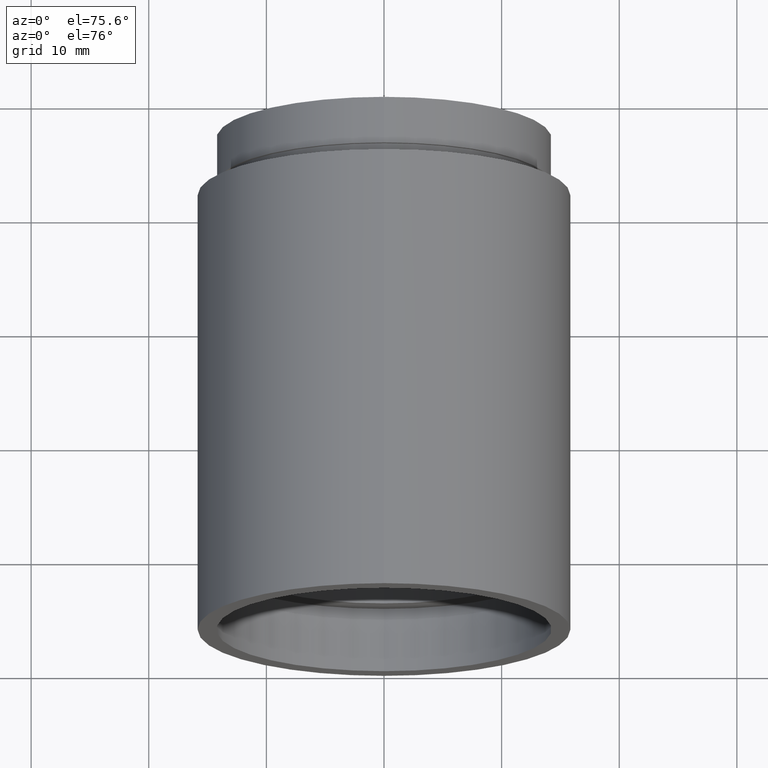
[diagram: clean part render]
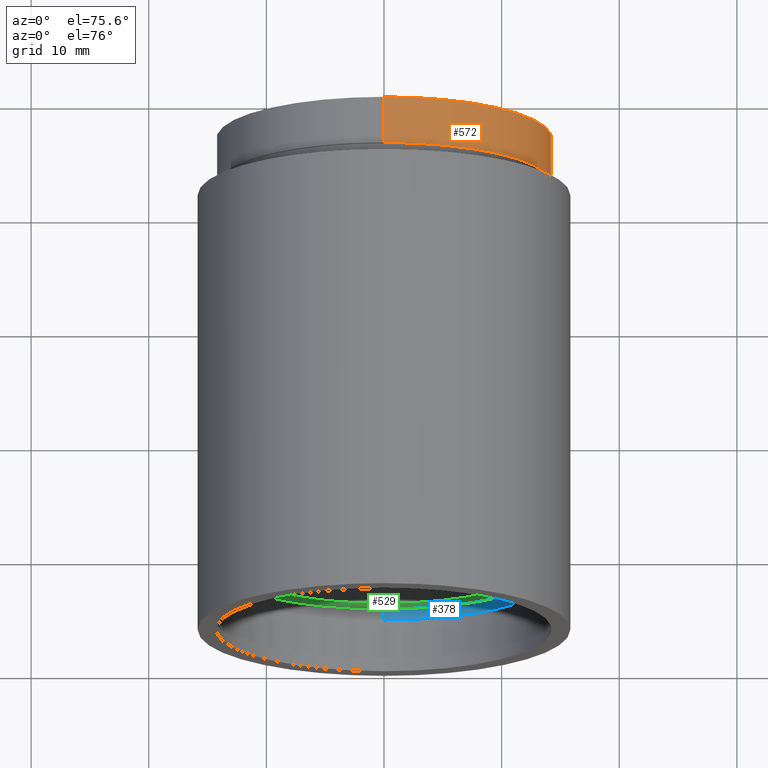
[diagram: same view with three faces highlighted in distinct colors, each labeled with its STEP entity id]
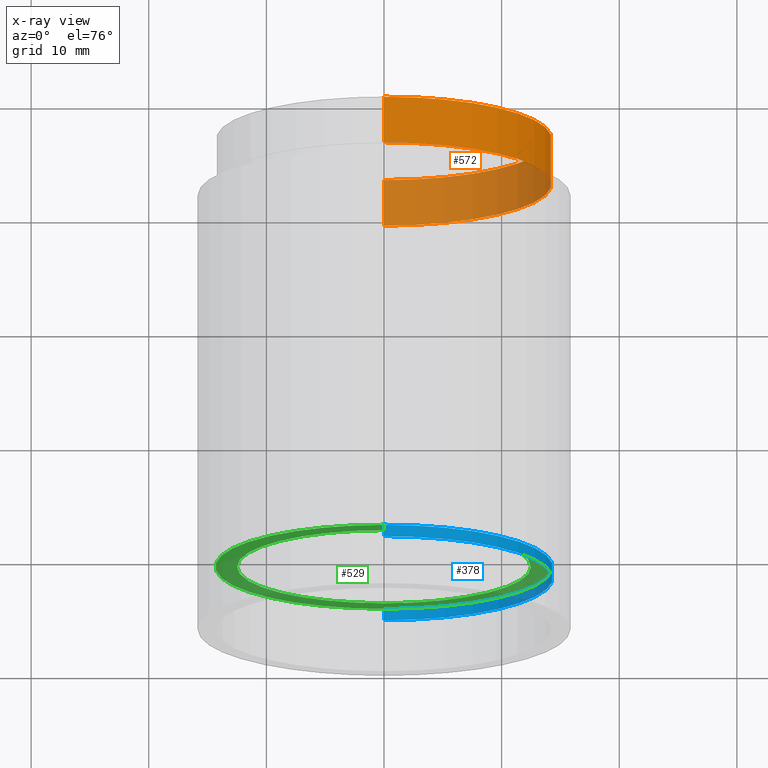
[diagram: x-ray of the same camera — body ghosted, the three highlighted faces saturated]
A machine part, auxiliary view with three faces highlighted in distinct colors.
The next image is the same camera in x-ray (body ghosted, the three faces saturated) — at least one of them is partly hidden behind the body in this view.
Their STEP definitions:

[orange] entity #572 — the highlighted cylindrical surface (partial cylindrical patch) has radius 14.25 mm, axis along (-0, 1, -0).
#10 = CARTESIAN_POINT ( 'NONE',  ( 1.745121688784980200E-015, 161.3761669434274500, -14.25000000000001600 ) ) ;
#23 = VECTOR ( 'NONE', #558, 1000.000000000000000 ) ;
#44 = CIRCLE ( 'NONE', #351, 14.25000000000001600 ) ;
#87 = ORIENTED_EDGE ( 'NONE', *, *, #145, .T. ) ;
#92 = EDGE_CURVE ( 'NONE', #109, #540, #467, .T. ) ;
#109 = VERTEX_POINT ( 'NONE', #113 ) ;
#113 = CARTESIAN_POINT ( 'NONE',  ( 0.0000000000000000000, 43.10000000000000100, 14.25000000000001600 ) ) ;
#127 = LINE ( 'NONE', #357, #23 ) ;
#135 = EDGE_CURVE ( 'NONE', #555, #540, #146, .T. ) ;
#145 = EDGE_CURVE ( 'NONE', #616, #555, #44, .T. ) ;
#146 = LINE ( 'NONE', #10, #513 ) ;
#158 = DIRECTION ( 'NONE',  ( -0.0000000000000000000, 1.000000000000000000, -0.0000000000000000000 ) ) ;
#175 = ORIENTED_EDGE ( 'NONE', *, *, #135, .T. ) ;
#186 = CARTESIAN_POINT ( 'NONE',  ( 1.745121688784980200E-015, 43.10000000000000100, -14.25000000000001600 ) ) ;
#187 = CYLINDRICAL_SURFACE ( 'NONE', #245, 14.25000000000001600 ) ;
#245 = AXIS2_PLACEMENT_3D ( 'NONE', #470, #318, #473 ) ;
#255 = DIRECTION ( 'NONE',  ( -0.0000000000000000000, 1.000000000000000000, -0.0000000000000000000 ) ) ;
#280 = ORIENTED_EDGE ( 'NONE', *, *, #92, .F. ) ;
#318 = DIRECTION ( 'NONE',  ( -0.0000000000000000000, 1.000000000000000000, -0.0000000000000000000 ) ) ;
#325 = EDGE_CURVE ( 'NONE', #616, #109, #127, .T. ) ;
#326 = FACE_OUTER_BOUND ( 'NONE', #504, .T. ) ;
#332 = AXIS2_PLACEMENT_3D ( 'NONE', #536, #158, #590 ) ;
#339 = DIRECTION ( 'NONE',  ( -0.0000000000000000000, 1.000000000000000000, -0.0000000000000000000 ) ) ;
#351 = AXIS2_PLACEMENT_3D ( 'NONE', #398, #255, #457 ) ;
#357 = CARTESIAN_POINT ( 'NONE',  ( 0.0000000000000000000, 161.3761669434274500, 14.25000000000001600 ) ) ;
#398 = CARTESIAN_POINT ( 'NONE',  ( 0.0000000000000000000, 39.09999999999999400, 0.0000000000000000000 ) ) ;
#457 = DIRECTION ( 'NONE',  ( 0.0000000000000000000, 0.0000000000000000000, 1.000000000000000000 ) ) ;
#467 = CIRCLE ( 'NONE', #332, 14.25000000000001600 ) ;
#468 = CARTESIAN_POINT ( 'NONE',  ( 1.745121688784980200E-015, 39.09999999999999400, -14.25000000000001600 ) ) ;
#470 = CARTESIAN_POINT ( 'NONE',  ( 0.0000000000000000000, 161.3761669434274500, 0.0000000000000000000 ) ) ;
#473 = DIRECTION ( 'NONE',  ( 0.0000000000000000000, 0.0000000000000000000, 1.000000000000000000 ) ) ;
#504 = EDGE_LOOP ( 'NONE', ( #87, #175, #280, #578 ) ) ;
#513 = VECTOR ( 'NONE', #339, 1000.000000000000000 ) ;
#536 = CARTESIAN_POINT ( 'NONE',  ( 0.0000000000000000000, 43.10000000000000100, 0.0000000000000000000 ) ) ;
#540 = VERTEX_POINT ( 'NONE', #186 ) ;
#555 = VERTEX_POINT ( 'NONE', #468 ) ;
#558 = DIRECTION ( 'NONE',  ( -0.0000000000000000000, 1.000000000000000000, -0.0000000000000000000 ) ) ;
#572 = ADVANCED_FACE ( 'NONE', ( #326 ), #187, .T. ) ;
#578 = ORIENTED_EDGE ( 'NONE', *, *, #325, .F. ) ;
#590 = DIRECTION ( 'NONE',  ( 0.0000000000000000000, 0.0000000000000000000, 1.000000000000000000 ) ) ;
#616 = VERTEX_POINT ( 'NONE', #621 ) ;
#621 = CARTESIAN_POINT ( 'NONE',  ( 0.0000000000000000000, 39.09999999999999400, 14.25000000000001600 ) ) ;

[blue] entity #378 — the highlighted cylindrical surface (partial cylindrical patch) has radius 14.35 mm, axis along (-0, 1, -0).
#11 = LINE ( 'NONE', #199, #565 ) ;
#26 = CARTESIAN_POINT ( 'NONE',  ( 0.0000000000000000000, 4.499999999999976000, 0.0000000000000000000 ) ) ;
#50 = AXIS2_PLACEMENT_3D ( 'NONE', #249, #391, #386 ) ;
#63 = EDGE_LOOP ( 'NONE', ( #95, #299, #103, #580 ) ) ;
#72 = DIRECTION ( 'NONE',  ( 0.0000000000000000000, 0.0000000000000000000, 1.000000000000000000 ) ) ;
#73 = CIRCLE ( 'NONE', #50, 14.35000000000001900 ) ;
#75 = VERTEX_POINT ( 'NONE', #108 ) ;
#79 = CARTESIAN_POINT ( 'NONE',  ( 1.757368156776454300E-015, 4.499999999999976000, -14.35000000000001900 ) ) ;
#83 = EDGE_CURVE ( 'NONE', #358, #387, #11, .T. ) ;
#90 = FACE_OUTER_BOUND ( 'NONE', #63, .T. ) ;
#95 = ORIENTED_EDGE ( 'NONE', *, *, #83, .F. ) ;
#96 = DIRECTION ( 'NONE',  ( -0.0000000000000000000, 1.000000000000000000, -0.0000000000000000000 ) ) ;
#103 = ORIENTED_EDGE ( 'NONE', *, *, #258, .T. ) ;
#108 = CARTESIAN_POINT ( 'NONE',  ( 0.0000000000000000000, 4.499999999999976000, 14.35000000000001900 ) ) ;
#112 = EDGE_CURVE ( 'NONE', #434, #387, #73, .T. ) ;
#143 = DIRECTION ( 'NONE',  ( 0.0000000000000000000, 0.0000000000000000000, 1.000000000000000000 ) ) ;
#152 = AXIS2_PLACEMENT_3D ( 'NONE', #26, #203, #72 ) ;
#155 = DIRECTION ( 'NONE',  ( -0.0000000000000000000, 1.000000000000000000, -0.0000000000000000000 ) ) ;
#193 = VECTOR ( 'NONE', #309, 1000.000000000000000 ) ;
#199 = CARTESIAN_POINT ( 'NONE',  ( 1.757368156776454300E-015, 161.3761669434274500, -14.35000000000001900 ) ) ;
#202 = EDGE_CURVE ( 'NONE', #75, #358, #517, .T. ) ;
#203 = DIRECTION ( 'NONE',  ( -0.0000000000000000000, 1.000000000000000000, -0.0000000000000000000 ) ) ;
#249 = CARTESIAN_POINT ( 'NONE',  ( 0.0000000000000000000, 5.499999999999976900, 0.0000000000000000000 ) ) ;
#258 = EDGE_CURVE ( 'NONE', #75, #434, #270, .T. ) ;
#270 = LINE ( 'NONE', #612, #193 ) ;
#299 = ORIENTED_EDGE ( 'NONE', *, *, #202, .F. ) ;
#309 = DIRECTION ( 'NONE',  ( -0.0000000000000000000, 1.000000000000000000, -0.0000000000000000000 ) ) ;
#323 = CARTESIAN_POINT ( 'NONE',  ( 0.0000000000000000000, 161.3761669434274500, 0.0000000000000000000 ) ) ;
#358 = VERTEX_POINT ( 'NONE', #79 ) ;
#363 = CARTESIAN_POINT ( 'NONE',  ( 0.0000000000000000000, 5.499999999999976900, 14.35000000000001900 ) ) ;
#378 = ADVANCED_FACE ( 'NONE', ( #90 ), #471, .F. ) ;
#386 = DIRECTION ( 'NONE',  ( 0.0000000000000000000, 0.0000000000000000000, 1.000000000000000000 ) ) ;
#387 = VERTEX_POINT ( 'NONE', #459 ) ;
#391 = DIRECTION ( 'NONE',  ( -0.0000000000000000000, 1.000000000000000000, -0.0000000000000000000 ) ) ;
#434 = VERTEX_POINT ( 'NONE', #363 ) ;
#437 = AXIS2_PLACEMENT_3D ( 'NONE', #323, #96, #143 ) ;
#459 = CARTESIAN_POINT ( 'NONE',  ( 1.757368156776454300E-015, 5.499999999999976900, -14.35000000000001900 ) ) ;
#471 = CYLINDRICAL_SURFACE ( 'NONE', #437, 14.35000000000001900 ) ;
#517 = CIRCLE ( 'NONE', #152, 14.35000000000001900 ) ;
#565 = VECTOR ( 'NONE', #155, 1000.000000000000000 ) ;
#580 = ORIENTED_EDGE ( 'NONE', *, *, #112, .T. ) ;
#612 = CARTESIAN_POINT ( 'NONE',  ( 0.0000000000000000000, 161.3761669434274500, 14.35000000000001900 ) ) ;

[green] entity #529 — the highlighted planar face has unit normal (-0, 1, 0).
#33 = DIRECTION ( 'NONE',  ( -0.0000000000000000000, 1.000000000000000000, 0.0000000000000000000 ) ) ;
#38 = EDGE_LOOP ( 'NONE', ( #189, #217 ) ) ;
#50 = AXIS2_PLACEMENT_3D ( 'NONE', #249, #391, #386 ) ;
#57 = CARTESIAN_POINT ( 'NONE',  ( 0.0000000000000000000, 5.499999999999976900, 0.0000000000000000000 ) ) ;
#69 = DIRECTION ( 'NONE',  ( 0.0000000000000000000, 0.0000000000000000000, 1.000000000000000000 ) ) ;
#73 = CIRCLE ( 'NONE', #50, 14.35000000000001900 ) ;
#112 = EDGE_CURVE ( 'NONE', #434, #387, #73, .T. ) ;
#119 = CARTESIAN_POINT ( 'NONE',  ( 0.0000000000000000000, 5.499999999999976900, 0.0000000000000000000 ) ) ;
#161 = ORIENTED_EDGE ( 'NONE', *, *, #237, .T. ) ;
#189 = ORIENTED_EDGE ( 'NONE', *, *, #112, .F. ) ;
#213 = AXIS2_PLACEMENT_3D ( 'NONE', #119, #350, #69 ) ;
#216 = EDGE_CURVE ( 'NONE', #594, #384, #274, .T. ) ;
#217 = ORIENTED_EDGE ( 'NONE', *, *, #379, .F. ) ;
#237 = EDGE_CURVE ( 'NONE', #384, #594, #295, .T. ) ;
#249 = CARTESIAN_POINT ( 'NONE',  ( 0.0000000000000000000, 5.499999999999976900, 0.0000000000000000000 ) ) ;
#274 = CIRCLE ( 'NONE', #474, 12.50000000000002000 ) ;
#294 = DIRECTION ( 'NONE',  ( -0.0000000000000000000, 1.000000000000000000, -0.0000000000000000000 ) ) ;
#295 = CIRCLE ( 'NONE', #213, 12.50000000000002000 ) ;
#341 = AXIS2_PLACEMENT_3D ( 'NONE', #553, #33, #373 ) ;
#347 = EDGE_LOOP ( 'NONE', ( #161, #446 ) ) ;
#350 = DIRECTION ( 'NONE',  ( -0.0000000000000000000, 1.000000000000000000, -0.0000000000000000000 ) ) ;
#353 = CARTESIAN_POINT ( 'NONE',  ( 0.0000000000000000000, 5.499999999999976900, 12.50000000000002000 ) ) ;
#363 = CARTESIAN_POINT ( 'NONE',  ( 0.0000000000000000000, 5.499999999999976900, 14.35000000000001900 ) ) ;
#373 = DIRECTION ( 'NONE',  ( 0.0000000000000000000, 0.0000000000000000000, 1.000000000000000000 ) ) ;
#376 = AXIS2_PLACEMENT_3D ( 'NONE', #57, #404, #603 ) ;
#379 = EDGE_CURVE ( 'NONE', #387, #434, #458, .T. ) ;
#384 = VERTEX_POINT ( 'NONE', #353 ) ;
#386 = DIRECTION ( 'NONE',  ( 0.0000000000000000000, 0.0000000000000000000, 1.000000000000000000 ) ) ;
#387 = VERTEX_POINT ( 'NONE', #459 ) ;
#390 = FACE_OUTER_BOUND ( 'NONE', #38, .T. ) ;
#391 = DIRECTION ( 'NONE',  ( -0.0000000000000000000, 1.000000000000000000, -0.0000000000000000000 ) ) ;
#404 = DIRECTION ( 'NONE',  ( -0.0000000000000000000, 1.000000000000000000, -0.0000000000000000000 ) ) ;
#424 = FACE_BOUND ( 'NONE', #347, .T. ) ;
#434 = VERTEX_POINT ( 'NONE', #363 ) ;
#446 = ORIENTED_EDGE ( 'NONE', *, *, #216, .T. ) ;
#458 = CIRCLE ( 'NONE', #376, 14.35000000000001900 ) ;
#459 = CARTESIAN_POINT ( 'NONE',  ( 1.757368156776454300E-015, 5.499999999999976900, -14.35000000000001900 ) ) ;
#474 = AXIS2_PLACEMENT_3D ( 'NONE', #542, #294, #598 ) ;
#509 = PLANE ( 'NONE',  #341 ) ;
#529 = ADVANCED_FACE ( 'NONE', ( #390, #424 ), #509, .F. ) ;
#542 = CARTESIAN_POINT ( 'NONE',  ( 0.0000000000000000000, 5.499999999999976900, 0.0000000000000000000 ) ) ;
#553 = CARTESIAN_POINT ( 'NONE',  ( 12.50000000000002000, 5.499999999999984000, 0.0000000000000000000 ) ) ;
#566 = CARTESIAN_POINT ( 'NONE',  ( 1.530808498934193900E-015, 5.499999999999976900, -12.50000000000002000 ) ) ;
#594 = VERTEX_POINT ( 'NONE', #566 ) ;
#598 = DIRECTION ( 'NONE',  ( 0.0000000000000000000, 0.0000000000000000000, 1.000000000000000000 ) ) ;
#603 = DIRECTION ( 'NONE',  ( 0.0000000000000000000, 0.0000000000000000000, 1.000000000000000000 ) ) ;